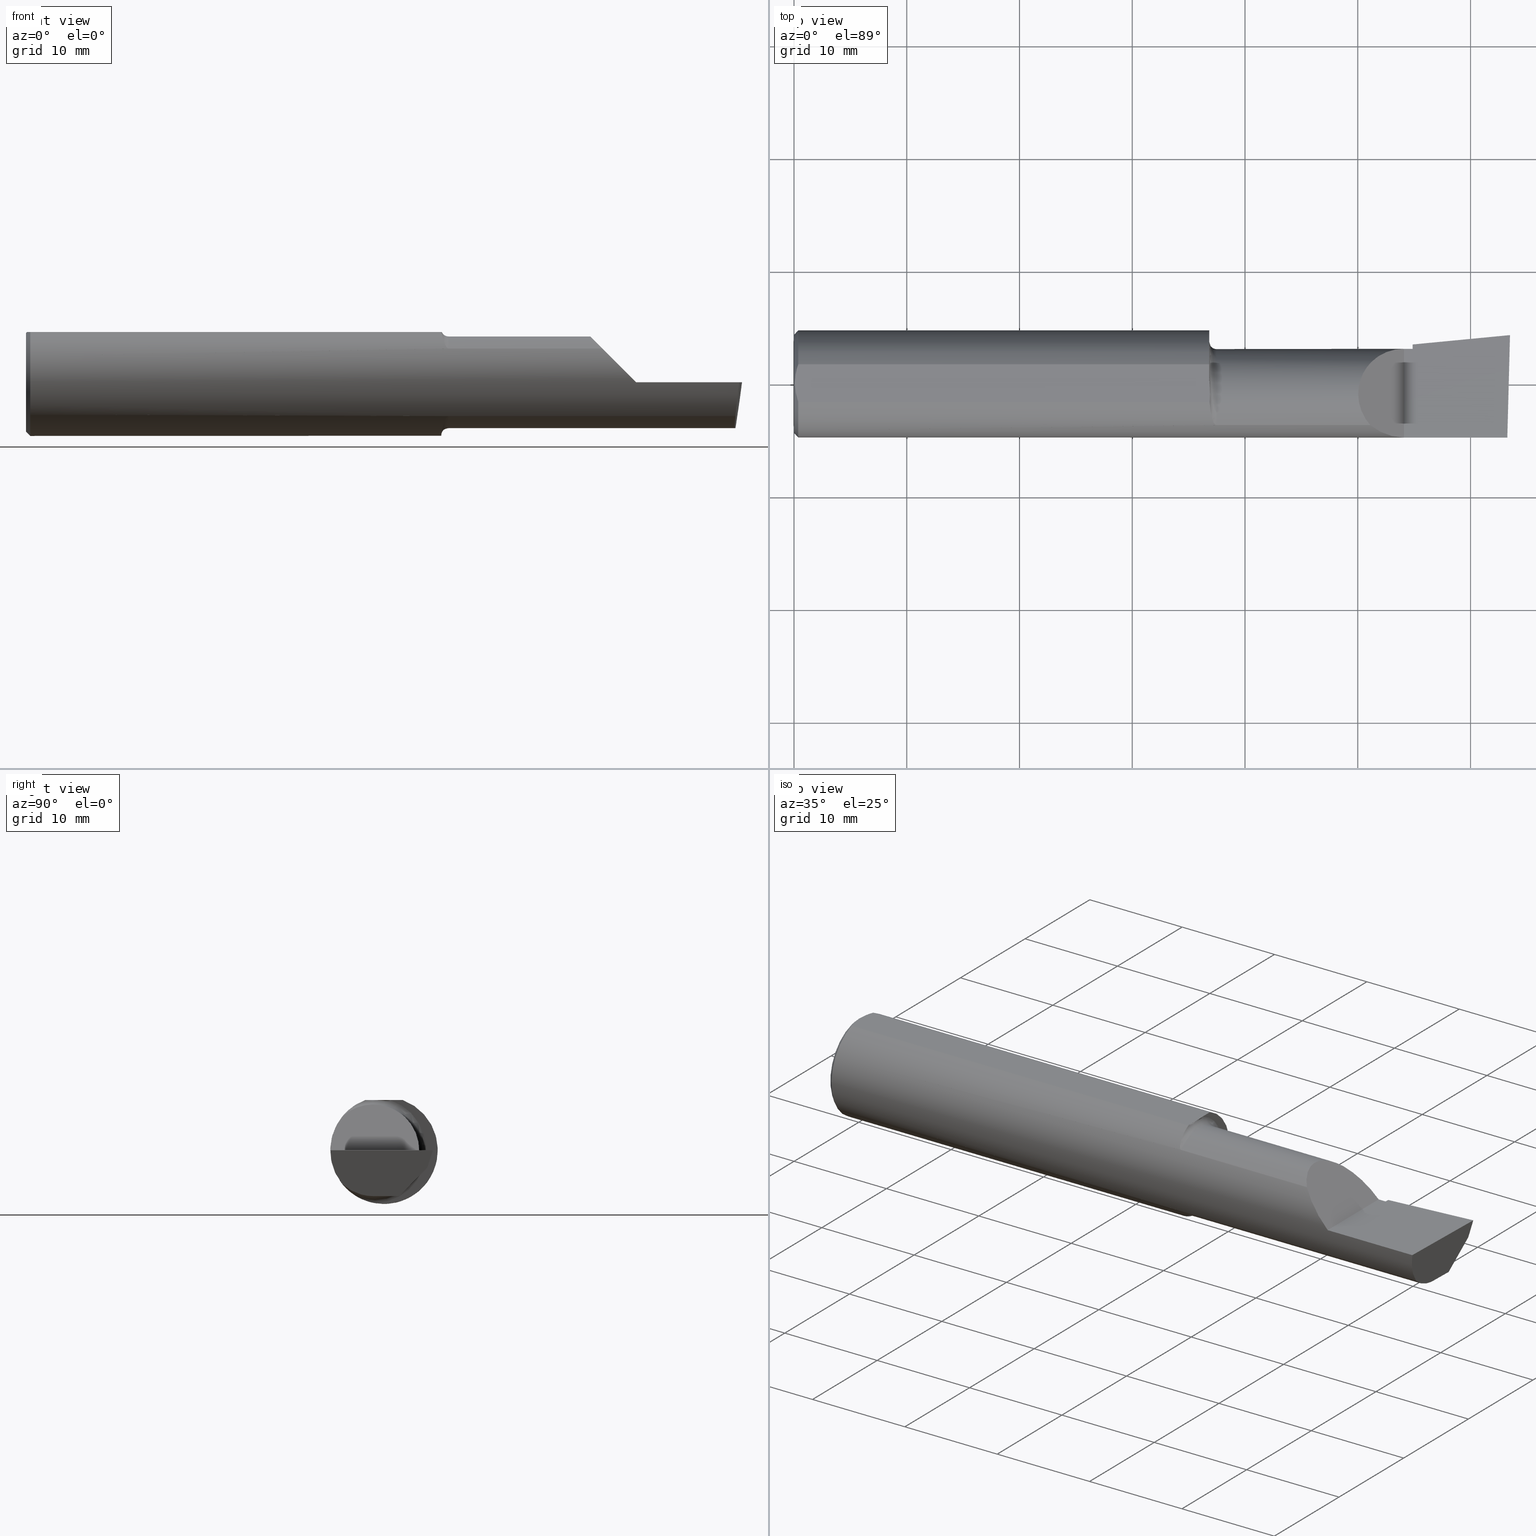
[diagram: canonical four-view strip — front | top / right | iso, engineering-drawing reading convention]
A machine part, canonical four-view strip (front | top / right | iso — engineering-drawing reading convention). The complete STEP part file that produces these views, byte-faithful:
ISO-10303-21;
HEADER;
FILE_DESCRIPTION (( 'STEP AP203' ),
    '1' );
FILE_NAME ('217519-B3601000.STEP',
    '2024-04-26T22:26:02',
    ( '' ),
    ( '' ),
    'SwSTEP 2.0',
    'SolidWorks 2022',
    '' );
FILE_SCHEMA (( 'CONFIG_CONTROL_DESIGN' ));
ENDSEC;

DATA;
#1 = EDGE_CURVE ( 'NONE', #325, #211, #90, .T. ) ;
#2 = CARTESIAN_POINT ( 'NONE',  ( 0.01499999999999997863, -0.06597272163553657975, 0.1753499999999999781 ) ) ;
#3 = ORIENTED_EDGE ( 'NONE', *, *, #240, .T. ) ;
#4 = CARTESIAN_POINT ( 'NONE',  ( 2.477223734188808812, -0.1454917112299466964, -0.1180346748349052066 ) ) ;
#5 = AXIS2_PLACEMENT_3D ( 'NONE', #89, #183, #293 ) ;
#6 = VERTEX_POINT ( 'NONE', #79 ) ;
#7 = CARTESIAN_POINT ( 'NONE',  ( 2.477223734188808812, -0.1454917112299466964, -0.1180346748349052066 ) ) ;
#8 = EDGE_CURVE ( 'NONE', #355, #362, #520, .T. ) ;
#9 = CARTESIAN_POINT ( 'NONE',  ( 1.458327409769773153, -0.1182546610979334223, 0.1455684145307631072 ) ) ;
#10 = ORIENTED_EDGE ( 'NONE', *, *, #180, .F. ) ;
#11 = CARTESIAN_POINT ( 'NONE',  ( 2.160000000000000142, -0.03740000000000000269, 0.000000000000000000 ) ) ;
#12 = CARTESIAN_POINT ( 'NONE',  ( 1.450000000000000178, -0.03739999999999999575, 0.000000000000000000 ) ) ;
#13 = ORIENTED_EDGE ( 'NONE', *, *, #488, .F. ) ;
#14 = ADVANCED_FACE ( 'NONE', ( #480 ), #426, .F. ) ;
#15 = DIRECTION ( 'NONE',  ( -1.000000000000000000, -0.000000000000000000, -0.000000000000000000 ) ) ;
#16 = CARTESIAN_POINT ( 'NONE',  ( 1.473888626799698676, -0.1454917112299466131, 0.1180346748349054009 ) ) ;
#17 = APPROVAL_PERSON_ORGANIZATION ( #359, #504, #33 ) ;
#18 = EDGE_LOOP ( 'NONE', ( #449, #558, #167, #72 ) ) ;
#19 = VECTOR ( 'NONE', #372, 39.37007874015748854 ) ;
#20 = CARTESIAN_POINT ( 'NONE',  ( 2.500000000000000000, -0.2500000000000000555, 6.829619984160658046E-17 ) ) ;
#21 = ORIENTED_EDGE ( 'NONE', *, *, #36, .T. ) ;
#22 = APPROVAL_STATUS ( 'not_yet_approved' ) ;
#23 = CARTESIAN_POINT ( 'NONE',  ( 1.451116380138691264, -0.06597272163553657975, 0.1753499999999999781 ) ) ;
#24 = ORIENTED_EDGE ( 'NONE', *, *, #335, .T. ) ;
#25 =( BOUNDED_CURVE ( )  B_SPLINE_CURVE ( 3, ( #447, #403, #454, #591 ),
 .UNSPECIFIED., .F., .F. ) 
 B_SPLINE_CURVE_WITH_KNOTS ( ( 4, 4 ),
 ( 4.712388980384689674, 5.393970886271889142 ),
 .UNSPECIFIED. ) 
 CURVE ( )  GEOMETRIC_REPRESENTATION_ITEM ( )  RATIONAL_B_SPLINE_CURVE ( ( 1.000000000000000000, 0.9616603987079548332, 0.9616603987079548332, 1.000000000000000000 ) ) 
 REPRESENTATION_ITEM ( '' )  );
#26 = LINE ( 'NONE', #522, #102 ) ;
#27 = PRODUCT ( '217519-B3601000', '217519-B3601000', '', ( #124 ) ) ;
#28 = ORIENTED_EDGE ( 'NONE', *, *, #385, .F. ) ;
#29 = PERSON_AND_ORGANIZATION ( #106, #332 ) ;
#30 = AXIS2_PLACEMENT_3D ( 'NONE', #441, #489, #493 ) ;
#31 = DIRECTION ( 'NONE',  ( -0.06894566448119622548, 0.7160281025913036723, -0.6946583704589932573 ) ) ;
#32 = PLANE ( 'NONE',  #314 ) ;
#33 = APPROVAL_ROLE ( '' ) ;
#34 = LINE ( 'NONE', #511, #324 ) ;
#35 = VERTEX_POINT ( 'NONE', #41 ) ;
#36 = EDGE_CURVE ( 'NONE', #362, #386, #433, .T. ) ;
#37 = FACE_OUTER_BOUND ( 'NONE', #445, .T. ) ;
#38 = CARTESIAN_POINT ( 'NONE',  ( 2.500000000000000000, 0.2373500000000000332, 0.1753499999999999504 ) ) ;
#39 = CARTESIAN_POINT ( 'NONE',  ( 1.470088327122037963, -0.1434986192849193043, -0.1204547541528185328 ) ) ;
#40 = VECTOR ( 'NONE', #476, 39.37007874015748143 ) ;
#41 = CARTESIAN_POINT ( 'NONE',  ( 2.160000000000000142, 0.1028057716897400747, -0.07719031082256667953 ) ) ;
#42 = CARTESIAN_POINT ( 'NONE',  ( 0.003000000000000218638, 2.334609556160449697E-17, 0.1753499999999999781 ) ) ;
#43 = ADVANCED_FACE ( 'NONE', ( #531 ), #32, .F. ) ;
#44 = EDGE_CURVE ( 'NONE', #53, #475, #159, .T. ) ;
#45 = ORIENTED_EDGE ( 'NONE', *, *, #562, .T. ) ;
#46 = LINE ( 'NONE', #237, #81 ) ;
#47 = PLANE ( 'NONE',  #343 ) ;
#48 = ORIENTED_EDGE ( 'NONE', *, *, #628, .T. ) ;
#49 = APPROVAL_STATUS ( 'not_yet_approved' ) ;
#50 = PLANE ( 'NONE',  #5 ) ;
#51 = CARTESIAN_POINT ( 'NONE',  ( 2.474893613600468445, -0.03739999999999999575, -0.1600499999999999701 ) ) ;
#52 = APPROVAL ( #22, 'UNSPECIFIED' ) ;
#53 = VERTEX_POINT ( 'NONE', #523 ) ;
#54 = ADVANCED_FACE ( 'NONE', ( #178 ), #571, .T. ) ;
#55 = EDGE_LOOP ( 'NONE', ( #236, #418 ) ) ;
#56 = CARTESIAN_POINT ( 'NONE',  ( 0.008227791779583789808, -0.04447712204611815878, 0.1753499999999999781 ) ) ;
#57 = DIRECTION ( 'NONE',  ( -4.755568962650852027E-18, -0.6963153109074922131, -0.7177360153954949196 ) ) ;
#58 = VECTOR ( 'NONE', #291, 39.37007874015748143 ) ;
#59 = CARTESIAN_POINT ( 'NONE',  ( 0.000000000000000000, -0.06597272163553657975, 0.1753499999999999781 ) ) ;
#60 = CARTESIAN_POINT ( 'NONE',  ( 0.01499999999999999424, 0.000000000000000000, 0.000000000000000000 ) ) ;
#61 = EDGE_CURVE ( 'NONE', #503, #475, #545, .T. ) ;
#62 = VERTEX_POINT ( 'NONE', #435 ) ;
#63 = CARTESIAN_POINT ( 'NONE',  ( 2.480648201915109929, -0.1728409665178087806, -0.08432347972837171690 ) ) ;
#64 = DIRECTION ( 'NONE',  ( -1.000000000000000000, 6.829619984160658046E-18, -0.000000000000000000 ) ) ;
#65 = VERTEX_POINT ( 'NONE', #550 ) ;
#66 = APPROVAL_STATUS ( 'not_yet_approved' ) ;
#67 = CARTESIAN_POINT ( 'NONE',  ( 0.01499999999999999424, 0.000000000000000000, -0.1873499999999999888 ) ) ;
#68 = ORIENTED_EDGE ( 'NONE', *, *, #554, .T. ) ;
#69 = VECTOR ( 'NONE', #482, 39.37007874015748854 ) ;
#70 = DIRECTION ( 'NONE',  ( 1.000000000000000000, 0.000000000000000000, 0.000000000000000000 ) ) ;
#71 = DIRECTION ( 'NONE',  ( -0.9953961983671800740, -0.09584575252021031166, 0.000000000000000000 ) ) ;
#72 = ORIENTED_EDGE ( 'NONE', *, *, #492, .T. ) ;
#73 = APPROVAL_DATE_TIME ( #76, #52 ) ;
#74 = LINE ( 'NONE', #165, #274 ) ;
#75 = VERTEX_POINT ( 'NONE', #141 ) ;
#76 = DATE_AND_TIME ( #467, #241 ) ;
#77 = FACE_OUTER_BOUND ( 'NONE', #328, .T. ) ;
#78 = CC_DESIGN_SECURITY_CLASSIFICATION ( #187, ( #577 ) ) ;
#79 = CARTESIAN_POINT ( 'NONE',  ( 2.129999999999999893, 0.1226499999999998147, 1.065442715258197396E-16 ) ) ;
#80 = AXIS2_PLACEMENT_3D ( 'NONE', #176, #373, #130 ) ;
#81 = VECTOR ( 'NONE', #436, 39.37007874015748143 ) ;
#82 = CARTESIAN_POINT ( 'NONE',  ( 1.450000000000000178, 0.02172596722253233859, 0.1753499999999999781 ) ) ;
#83 = EDGE_CURVE ( 'NONE', #214, #279, #140, .T. ) ;
#84 = CARTESIAN_POINT ( 'NONE',  ( 2.500188977433833504, 0.1711105994646693607, 0.001440373173035005379 ) ) ;
#85 = APPROVAL_DATE_TIME ( #529, #87 ) ;
#86 = CARTESIAN_POINT ( 'NONE',  ( 0.000000000000000000, 0.000000000000000000, -0.1723499999999996424 ) ) ;
#87 = APPROVAL ( #49, 'UNSPECIFIED' ) ;
#88 = VERTEX_POINT ( 'NONE', #485 ) ;
#89 = CARTESIAN_POINT ( 'NONE',  ( 2.509953961983671267, 0.1716084575252020683, -6.829619984160658046E-17 ) ) ;
#90 = LINE ( 'NONE', #370, #378 ) ;
#91 = LOCAL_TIME ( 15, 26, 2.000000000000000000, #271 ) ;
#92 = EDGE_CURVE ( 'NONE', #156, #386, #448, .T. ) ;
#93 = CARTESIAN_POINT ( 'NONE',  ( 1.462916881138097036, -0.1325294370633277874, -0.1325423110575149888 ) ) ;
#94 = ORIENTED_EDGE ( 'NONE', *, *, #44, .T. ) ;
#95 = CARTESIAN_POINT ( 'NONE',  ( 1.449999999999999734, -0.04186526254461760133, -0.1829978128711760021 ) ) ;
#96 = DIRECTION ( 'NONE',  ( 1.000000000000000000, 0.000000000000000000, 0.000000000000000000 ) ) ;
#97 = DIRECTION ( 'NONE',  ( -1.000000000000000000, -0.000000000000000000, -0.000000000000000000 ) ) ;
#98 = DIMENSIONAL_EXPONENTS ( 1.000000000000000000, 0.000000000000000000, 0.000000000000000000, 0.000000000000000000, 0.000000000000000000, 0.000000000000000000, 0.000000000000000000 ) ;
#99 = ORIENTED_EDGE ( 'NONE', *, *, #376, .F. ) ;
#100 = VECTOR ( 'NONE', #161, 39.37007874015748143 ) ;
#101 = CARTESIAN_POINT ( 'NONE',  ( 0.003000000000000172667, -0.01126410975715121283, 0.1753500000000000059 ) ) ;
#102 = VECTOR ( 'NONE', #365, 39.37007874015748143 ) ;
#103 = CARTESIAN_POINT ( 'NONE',  ( 2.473833329693935656, -0.07789060880782654184, -0.1600499999999999701 ) ) ;
#104 = CARTESIAN_POINT ( 'NONE',  ( 2.500000000000000000, -0.03739999999999999575, -0.1600499999999999701 ) ) ;
#105 = CARTESIAN_POINT ( 'NONE',  ( 1.474999999999999867, -0.1454917112299468351, 0.1180346748349049985 ) ) ;
#106 = PERSON ( 'UNSPECIFIED', 'UNSPECIFIED', 'UNSPECIFIED', ('UNSPECIFIED'), ('UNSPECIFIED'), ('UNSPECIFIED') ) ;
#107 = EDGE_CURVE ( 'NONE', #536, #325, #371, .T. ) ;
#108 = CARTESIAN_POINT ( 'NONE',  ( 1.453931069367344842, -0.09745462642916678797, 0.1609342754328617620 ) ) ;
#109 = CIRCLE ( 'NONE', #548, 0.1600499999999999423 ) ;
#110 = ORIENTED_EDGE ( 'NONE', *, *, #107, .T. ) ;
#111 = CARTESIAN_POINT ( 'NONE',  ( 2.160000000000000142, -0.03740000000000000269, 0.000000000000000000 ) ) ;
#112 = DIRECTION ( 'NONE',  ( 6.829619984160658046E-18, 1.000000000000000000, 0.000000000000000000 ) ) ;
#113 = ORIENTED_EDGE ( 'NONE', *, *, #36, .F. ) ;
#114 = PERSON_AND_ORGANIZATION ( #106, #332 ) ;
#115 = FACE_OUTER_BOUND ( 'NONE', #203, .T. ) ;
#116 = EDGE_LOOP ( 'NONE', ( #119, #429, #367, #94, #319 ) ) ;
#117 = COORDINATED_UNIVERSAL_TIME_OFFSET ( 8, 0, .BEHIND. ) ;
#118 = CARTESIAN_POINT ( 'NONE',  ( 2.511712141217646632, 0.1533490680423130470, -0.05999999999999999084 ) ) ;
#119 = ORIENTED_EDGE ( 'NONE', *, *, #590, .F. ) ;
#120 = PERSON_AND_ORGANIZATION ( #106, #332 ) ;
#121 = LINE ( 'NONE', #563, #198 ) ;
#122 = CC_DESIGN_PERSON_AND_ORGANIZATION_ASSIGNMENT ( #320, #473, ( #27 ) ) ;
#123 = ORIENTED_EDGE ( 'NONE', *, *, #269, .F. ) ;
#124 = MECHANICAL_CONTEXT ( 'NONE', #374, 'mechanical' ) ;
#125 = CARTESIAN_POINT ( 'NONE',  ( 2.477259974483429161, 0.05296767626088547121, -0.1600499999999999701 ) ) ;
#126 = EDGE_LOOP ( 'NONE', ( #68, #342 ) ) ;
#127 = COORDINATED_UNIVERSAL_TIME_OFFSET ( 8, 0, .BEHIND. ) ;
#128 = DIRECTION ( 'NONE',  ( -1.000000000000000000, 6.829619984160658046E-18, -0.000000000000000000 ) ) ;
#129 = VECTOR ( 'NONE', #266, 39.37007874015748143 ) ;
#130 = DIRECTION ( 'NONE',  ( 0.000000000000000000, 0.000000000000000000, 1.000000000000000000 ) ) ;
#131 = DIRECTION ( 'NONE',  ( 0.000000000000000000, 0.000000000000000000, -1.000000000000000000 ) ) ;
#132 = CARTESIAN_POINT ( 'NONE',  ( 0.000000000000000000, -0.03739999999999998881, 0.000000000000000000 ) ) ;
#133 = CALENDAR_DATE ( 2024, 26, 4 ) ;
#134 = CARTESIAN_POINT ( 'NONE',  ( 2.160000000000000142, -0.03739999999999999575, -0.1600499999999999701 ) ) ;
#135 = ORIENTED_EDGE ( 'NONE', *, *, #517, .T. ) ;
#136 = CARTESIAN_POINT ( 'NONE',  ( 0.003000000000000218638, 2.334609556160449697E-17, 0.1753499999999999781 ) ) ;
#137 = VERTEX_POINT ( 'NONE', #533 ) ;
#138 = LOCAL_TIME ( 15, 26, 2.000000000000000000, #117 ) ;
#139 = CARTESIAN_POINT ( 'NONE',  ( 1.457485333659844340, -0.1155414972264648399, -0.1479248906558525423 ) ) ;
#140 = CIRCLE ( 'NONE', #559, 0.1850499999999998813 ) ;
#141 = CARTESIAN_POINT ( 'NONE',  ( 2.129999999999999893, -0.1873499999999999888, 1.065442715258197396E-16 ) ) ;
#142 = MANIFOLD_SOLID_BREP ( 'Extrude7', #570 ) ;
#143 = CARTESIAN_POINT ( 'NONE',  ( 0.01125230581755086272, 0.05532998191409922023, 0.1753500000000000059 ) ) ;
#144 = B_SPLINE_CURVE_WITH_KNOTS ( 'NONE', 3,
 ( #82, #419, #610, #313, #216, #268, #172, #605, #278, #23 ),
 .UNSPECIFIED., .F., .F.,
 ( 4, 2, 2, 2, 4 ),
 ( 0.01227444304810502811, 0.01283060897601855099, 0.01338677490393207388, 0.01394294083184559677, 0.01449910675975911965 ),
 .UNSPECIFIED. ) ;
#145 = DIRECTION ( 'NONE',  ( 0.000000000000000000, 1.000000000000000000, 0.000000000000000000 ) ) ;
#146 = ORIENTED_EDGE ( 'NONE', *, *, #399, .F. ) ;
#147 = DIRECTION ( 'NONE',  ( -1.000000000000000000, 6.829619984160658046E-18, -0.000000000000000000 ) ) ;
#148 = ADVANCED_FACE ( 'NONE', ( #585 ), #420, .T. ) ;
#149 = ORIENTED_EDGE ( 'NONE', *, *, #583, .F. ) ;
#150 = CARTESIAN_POINT ( 'NONE',  ( 2.500000000000000000, -0.03739999999999999575, -0.1600499999999999701 ) ) ;
#151 = AXIS2_PLACEMENT_3D ( 'NONE', #495, #191, #145 ) ;
#152 = CARTESIAN_POINT ( 'NONE',  ( 0.000000000000000000, 0.000000000000000000, 0.000000000000000000 ) ) ;
#153 = ADVANCED_FACE ( 'NONE', ( #502 ), #47, .T. ) ;
#154 = LINE ( 'NONE', #104, #100 ) ;
#155 = CARTESIAN_POINT ( 'NONE',  ( 1.450000000000000178, 0.02172596722253233859, 0.1753499999999999781 ) ) ;
#156 = VERTEX_POINT ( 'NONE', #635 ) ;
#157 = LINE ( 'NONE', #351, #129 ) ;
#158 = LINE ( 'NONE', #205, #510 ) ;
#159 = CIRCLE ( 'NONE', #80, 0.1873499999999999888 ) ;
#160 = ORIENTED_EDGE ( 'NONE', *, *, #540, .F. ) ;
#161 = DIRECTION ( 'NONE',  ( -1.000000000000000000, 5.691349986800549142E-18, -0.000000000000000000 ) ) ;
#162 = LINE ( 'NONE', #357, #261 ) ;
#163 = ORIENTED_EDGE ( 'NONE', *, *, #583, .T. ) ;
#164 = PERSON_AND_ORGANIZATION ( #106, #332 ) ;
#165 = CARTESIAN_POINT ( 'NONE',  ( 1.450000000000000178, 0.2373500000000000332, 0.1753499999999999504 ) ) ;
#166 = EDGE_CURVE ( 'NONE', #279, #137, #446, .T. ) ;
#167 = ORIENTED_EDGE ( 'NONE', *, *, #599, .T. ) ;
#168 = CALENDAR_DATE ( 2024, 26, 4 ) ;
#169 = DIRECTION ( 'NONE',  ( -6.829619984160658046E-18, -1.000000000000000000, 0.000000000000000000 ) ) ;
#170 = LOCAL_TIME ( 15, 26, 2.000000000000000000, #383 ) ;
#171 = EDGE_LOOP ( 'NONE', ( #345, #561, #248, #574, #24, #196, #311, #466, #483, #412 ) ) ;
#172 = CARTESIAN_POINT ( 'NONE',  ( 1.452020598872754586, -0.03676412395316108056, 0.1753500000000000614 ) ) ;
#173 = ORIENTED_EDGE ( 'NONE', *, *, #238, .F. ) ;
#174 =( LENGTH_UNIT ( ) NAMED_UNIT ( * ) SI_UNIT ( $, .METRE. ) );
#175 = CARTESIAN_POINT ( 'NONE',  ( 2.488992440003207296, -0.2497117568972554158, 6.943408617627041469E-17 ) ) ;
#176 = CARTESIAN_POINT ( 'NONE',  ( 0.01499999999999999424, 0.000000000000000000, 0.000000000000000000 ) ) ;
#177 = CARTESIAN_POINT ( 'NONE',  ( 1.474999999999999867, -0.1454917112299468351, 0.1180346748349049985 ) ) ;
#178 = FACE_OUTER_BOUND ( 'NONE', #171, .T. ) ;
#179 = CARTESIAN_POINT ( 'NONE',  ( 2.129999999999999893, -0.2500000000000000555, 1.065442715258197396E-16 ) ) ;
#180 = EDGE_CURVE ( 'NONE', #75, #6, #254, .T. ) ;
#181 = ORIENTED_EDGE ( 'NONE', *, *, #535, .T. ) ;
#182 = SHAPE_DEFINITION_REPRESENTATION ( #514, #431 ) ;
#183 = DIRECTION ( 'NONE',  ( -0.09165774897393340337, 0.9519021185660613282, -0.2923717047227306631 ) ) ;
#184 = ORIENTED_EDGE ( 'NONE', *, *, #308, .F. ) ;
#185 = DIRECTION ( 'NONE',  ( -0.7071067811865511255, 0.000000000000000000, 0.7071067811865437980 ) ) ;
#186 = CARTESIAN_POINT ( 'NONE',  ( 1.464940665466612613, -0.1367234982206457783, 0.1281512008975648209 ) ) ;
#187 = SECURITY_CLASSIFICATION ( '', '', #457 ) ;
#188 = VECTOR ( 'NONE', #451, 39.37007874015748143 ) ;
#189 = CARTESIAN_POINT ( 'NONE',  ( 0.01499999999999999424, 0.06597272163553663527, 0.1753499999999999781 ) ) ;
#190 = CIRCLE ( 'NONE', #391, 0.1600499999999999701 ) ;
#191 = DIRECTION ( 'NONE',  ( 1.000000000000000000, -6.829619984160658046E-18, 0.000000000000000000 ) ) ;
#192 = ORIENTED_EDGE ( 'NONE', *, *, #83, .T. ) ;
#193 = ADVANCED_FACE ( 'NONE', ( #115 ), #609, .F. ) ;
#194 = CARTESIAN_POINT ( 'NONE',  ( 1.467060058352116725, -0.1401415676386934539, -0.1243666343873858632 ) ) ;
#195 = PLANE ( 'NONE',  #30 ) ;
#196 = ORIENTED_EDGE ( 'NONE', *, *, #630, .T. ) ;
#197 = DIRECTION ( 'NONE',  ( -4.755568962650852027E-18, -0.6963153109074922131, -0.7177360153954949196 ) ) ;
#198 = VECTOR ( 'NONE', #71, 39.37007874015748854 ) ;
#199 = EDGE_CURVE ( 'NONE', #461, #292, #158, .T. ) ;
#200 = DIRECTION ( 'NONE',  ( 0.000000000000000000, 0.000000000000000000, -1.000000000000000000 ) ) ;
#201 = CARTESIAN_POINT ( 'NONE',  ( 2.490625440078237940, -0.1873499999999999888, 6.926778495256700803E-17 ) ) ;
#202 = DIRECTION ( 'NONE',  ( -1.000000000000000000, 6.829619984160658046E-18, -0.000000000000000000 ) ) ;
#203 = EDGE_LOOP ( 'NONE', ( #258, #526, #397, #110, #439 ) ) ;
#204 = CARTESIAN_POINT ( 'NONE',  ( 0.000000000000000000, 2.202527268266512578E-17, 0.1723499999999996424 ) ) ;
#205 = CARTESIAN_POINT ( 'NONE',  ( 2.160000000000000142, 0.1010446066476776983, -0.07900565447499380278 ) ) ;
#206 = AXIS2_PLACEMENT_3D ( 'NONE', #543, #64, #299 ) ;
#207 = ORIENTED_EDGE ( 'NONE', *, *, #238, .T. ) ;
#208 = CARTESIAN_POINT ( 'NONE',  ( 0.000000000000000000, 0.000000000000000000, 0.000000000000000000 ) ) ;
#209 = ADVANCED_FACE ( 'NONE', ( #600 ), #250, .T. ) ;
#210 = CARTESIAN_POINT ( 'NONE',  ( 2.490625440078237940, -0.1873499999999999888, 6.926778495256700803E-17 ) ) ;
#211 = VERTEX_POINT ( 'NONE', #594 ) ;
#212 = APPROVAL_DATE_TIME ( #363, #504 ) ;
#213 = CARTESIAN_POINT ( 'NONE',  ( 2.160000000000000142, 0.02241901528670510110, -0.1600499999999999701 ) ) ;
#214 = VERTEX_POINT ( 'NONE', #155 ) ;
#215 =( NAMED_UNIT ( * ) PLANE_ANGLE_UNIT ( ) SI_UNIT ( $, .RADIAN. ) );
#216 = CARTESIAN_POINT ( 'NONE',  ( 1.451446793517544576, -0.01487494471390338711, 0.1753500000000000059 ) ) ;
#217 = CONICAL_SURFACE ( 'NONE', #242, 0.1873499999999999888, 0.7853981633974602694 ) ;
#218 = ORIENTED_EDGE ( 'NONE', *, *, #582, .T. ) ;
#219 = VECTOR ( 'NONE', #528, 39.37007874015748854 ) ;
#220 = LENGTH_MEASURE_WITH_UNIT ( LENGTH_MEASURE( 0.02539999999999999897 ), #174 );
#221 = DIRECTION ( 'NONE',  ( 0.7071067811865390240, 8.659560562355036396E-17, 0.7071067811865560104 ) ) ;
#222 = CARTESIAN_POINT ( 'NONE',  ( 0.000000000000000000, 0.000000000000000000, 0.000000000000000000 ) ) ;
#223 = CALENDAR_DATE ( 2024, 26, 4 ) ;
#224 = DIRECTION ( 'NONE',  ( -1.000000000000000000, 0.000000000000000000, 1.033731667140896077E-16 ) ) ;
#225 = ORIENTED_EDGE ( 'NONE', *, *, #406, .F. ) ;
#226 = EDGE_CURVE ( 'NONE', #156, #415, #162, .T. ) ;
#227 = CARTESIAN_POINT ( 'NONE',  ( 2.160000000000000142, 0.1194830407249524440, -0.05999999999999999084 ) ) ;
#228 = CC_DESIGN_DATE_AND_TIME_ASSIGNMENT ( #425, #617, ( #187 ) ) ;
#229 = CIRCLE ( 'NONE', #479, 0.1600499999999999146 ) ;
#230 = DIRECTION ( 'NONE',  ( 0.000000000000000000, -1.438723400918613551E-16, -1.000000000000000000 ) ) ;
#231 = DESIGN_CONTEXT ( 'detailed design', #615, 'design' ) ;
#232 = AXIS2_PLACEMENT_3D ( 'NONE', #518, #422, #613 ) ;
#233 = CARTESIAN_POINT ( 'NONE',  ( 1.465943198097122258, -0.1383011673991928203, -0.1264147259943153856 ) ) ;
#234 = VERTEX_POINT ( 'NONE', #210 ) ;
#235 = LINE ( 'NONE', #478, #286 ) ;
#236 = ORIENTED_EDGE ( 'NONE', *, *, #376, .T. ) ;
#237 = CARTESIAN_POINT ( 'NONE',  ( 2.160000000000000142, -0.03739999999999999575, -0.1600499999999999701 ) ) ;
#238 = EDGE_CURVE ( 'NONE', #234, #386, #264, .T. ) ;
#239 = CARTESIAN_POINT ( 'NONE',  ( 1.450000000000000178, 0.1476499999999998924, 0.000000000000000000 ) ) ;
#240 = EDGE_CURVE ( 'NONE', #53, #137, #26, .T. ) ;
#241 = LOCAL_TIME ( 15, 26, 2.000000000000000000, #127 ) ;
#242 = AXIS2_PLACEMENT_3D ( 'NONE', #566, #323, #131 ) ;
#243 = FACE_OUTER_BOUND ( 'NONE', #456, .T. ) ;
#244 = ORIENTED_EDGE ( 'NONE', *, *, #387, .T. ) ;
#245 = CARTESIAN_POINT ( 'NONE',  ( 0.000000000000000000, 0.000000000000000000, 0.000000000000000000 ) ) ;
#246 = EDGE_CURVE ( 'NONE', #601, #62, #560, .T. ) ;
#247 = CARTESIAN_POINT ( 'NONE',  ( 0.01128414053810044941, -0.05542038647445821781, 0.1753499999999999781 ) ) ;
#248 = ORIENTED_EDGE ( 'NONE', *, *, #622, .F. ) ;
#249 = CARTESIAN_POINT ( 'NONE',  ( 2.474646882977779239, -0.1156304438478838320, -0.1453804992321580947 ) ) ;
#250 = PLANE ( 'NONE',  #496 ) ;
#251 = VECTOR ( 'NONE', #333, 39.37007874015748143 ) ;
#252 = ORIENTED_EDGE ( 'NONE', *, *, #92, .F. ) ;
#253 = DIRECTION ( 'NONE',  ( -1.000000000000000000, -0.000000000000000000, -0.000000000000000000 ) ) ;
#254 = LINE ( 'NONE', #411, #458 ) ;
#255 = ORIENTED_EDGE ( 'NONE', *, *, #44, .F. ) ;
#256 = DIRECTION ( 'NONE',  ( -1.000000000000000000, -0.000000000000000000, -0.000000000000000000 ) ) ;
#257 = DIRECTION ( 'NONE',  ( -0.000000000000000000, 1.000000000000000000, -0.000000000000000000 ) ) ;
#258 = ORIENTED_EDGE ( 'NONE', *, *, #488, .T. ) ;
#259 =( BOUNDED_CURVE ( )  B_SPLINE_CURVE ( 3, ( #260, #460, #417, #513 ),
 .UNSPECIFIED., .F., .F. ) 
 B_SPLINE_CURVE_WITH_KNOTS ( ( 4, 4 ),
 ( 5.541729662751388119, 7.853981633974482790 ),
 .UNSPECIFIED. ) 
 CURVE ( )  GEOMETRIC_REPRESENTATION_ITEM ( )  RATIONAL_B_SPLINE_CURVE ( ( 1.000000000000000000, 0.6019254882129727591, 0.6019254882129727591, 1.000000000000000000 ) ) 
 REPRESENTATION_ITEM ( '' )  );
#260 = CARTESIAN_POINT ( 'NONE',  ( 2.011965325165093077, -0.1454917112299463633, 0.1180346748349055119 ) ) ;
#261 = VECTOR ( 'NONE', #348, 39.37007874015748143 ) ;
#262 = EDGE_LOOP ( 'NONE', ( #146, #207, #252, #184, #453, #10 ) ) ;
#263 =( BOUNDED_CURVE ( )  B_SPLINE_CURVE ( 3, ( #4, #249, #103, #51 ),
 .UNSPECIFIED., .F., .F. ) 
 B_SPLINE_CURVE_WITH_KNOTS ( ( 4, 4 ),
 ( 5.751779107031784299, 6.493234751459985965 ),
 .UNSPECIFIED. ) 
 CURVE ( )  GEOMETRIC_REPRESENTATION_ITEM ( )  RATIONAL_B_SPLINE_CURVE ( ( 1.000000000000000000, 0.9547092712975351336, 0.9547092712975351336, 1.000000000000000000 ) ) 
 REPRESENTATION_ITEM ( '' )  );
#264 = LINE ( 'NONE', #175, #19 ) ;
#265 = ORIENTED_EDGE ( 'NONE', *, *, #246, .F. ) ;
#266 = DIRECTION ( 'NONE',  ( 1.000000000000000000, -6.829619984160658046E-18, 0.000000000000000000 ) ) ;
#267 = ADVANCED_FACE ( 'NONE', ( #375 ), #217, .T. ) ;
#268 = CARTESIAN_POINT ( 'NONE',  ( 1.451936435452952923, -0.02946557294852162820, 0.1753500000000000614 ) ) ;
#269 = EDGE_CURVE ( 'NONE', #214, #536, #144, .T. ) ;
#270 = EDGE_LOOP ( 'NONE', ( #113, #45, #490, #506 ) ) ;
#271 = COORDINATED_UNIVERSAL_TIME_OFFSET ( 8, 0, .BEHIND. ) ;
#272 = DIRECTION ( 'NONE',  ( 0.000000000000000000, 0.6963153109074923242, 0.7177360153954949196 ) ) ;
#273 = AXIS2_PLACEMENT_3D ( 'NONE', #245, #256, #347 ) ;
#274 = VECTOR ( 'NONE', #360, 39.37007874015748143 ) ;
#275 = ORIENTED_EDGE ( 'NONE', *, *, #61, .T. ) ;
#276 = VECTOR ( 'NONE', #197, 39.37007874015748854 ) ;
#277 = PERSON_AND_ORGANIZATION_ROLE ( 'classification_officer' ) ;
#278 = CARTESIAN_POINT ( 'NONE',  ( 1.451479449616800199, -0.05867400124853733995, 0.1753500000000000059 ) ) ;
#279 = VERTEX_POINT ( 'NONE', #474 ) ;
#280 = CC_DESIGN_DATE_AND_TIME_ASSIGNMENT ( #368, #602, ( #614 ) ) ;
#281 = FACE_OUTER_BOUND ( 'NONE', #616, .T. ) ;
#282 = EDGE_LOOP ( 'NONE', ( #568, #611, #192 ) ) ;
#283 = ADVANCED_FACE ( 'NONE', ( #326 ), #369, .F. ) ;
#284 = CARTESIAN_POINT ( 'NONE',  ( 2.160000000000000142, -0.03740000000000000269, 0.000000000000000000 ) ) ;
#285 = ORIENTED_EDGE ( 'NONE', *, *, #562, .F. ) ;
#286 = VECTOR ( 'NONE', #434, 39.37007874015748854 ) ;
#287 = CARTESIAN_POINT ( 'NONE',  ( 0.004115035183746292881, 0.02255629470626744487, 0.1753499999999999781 ) ) ;
#288 = DIRECTION ( 'NONE',  ( 0.000000000000000000, 0.000000000000000000, -1.000000000000000000 ) ) ;
#289 = CARTESIAN_POINT ( 'NONE',  ( 1.450000000000000178, -0.03015080213903793827, -0.1849079544810676434 ) ) ;
#290 = ADVANCED_FACE ( 'NONE', ( #77 ), #468, .T. ) ;
#291 = DIRECTION ( 'NONE',  ( 0.7071067811865390240, 0.000000000000000000, -0.7071067811865560104 ) ) ;
#292 = VERTEX_POINT ( 'NONE', #213 ) ;
#293 = DIRECTION ( 'NONE',  ( 0.000000000000000000, 0.2936076258024064023, 0.9559260233253795702 ) ) ;
#294 =( GEOMETRIC_REPRESENTATION_CONTEXT ( 3 ) GLOBAL_UNCERTAINTY_ASSIGNED_CONTEXT ( ( #624 ) ) GLOBAL_UNIT_ASSIGNED_CONTEXT ( ( #416, #215, #556 ) ) REPRESENTATION_CONTEXT ( 'NONE', 'WORKASPACE' ) );
#295 = DIRECTION ( 'NONE',  ( 1.000000000000000000, 0.000000000000000000, 0.000000000000000000 ) ) ;
#296 = LINE ( 'NONE', #491, #634 ) ;
#297 = ORIENTED_EDGE ( 'NONE', *, *, #308, .T. ) ;
#298 = FACE_OUTER_BOUND ( 'NONE', #18, .T. ) ;
#299 = DIRECTION ( 'NONE',  ( -6.829619984160658046E-18, -1.000000000000000000, 0.000000000000000000 ) ) ;
#300 = CARTESIAN_POINT ( 'NONE',  ( 1.451116380138691264, -0.06597272163553657975, 0.1753499999999999781 ) ) ;
#301 = AXIS2_PLACEMENT_3D ( 'NONE', #132, #389, #310 ) ;
#302 = CARTESIAN_POINT ( 'NONE',  ( 0.3393181374772696324, -0.03739999999999998881, 2.916527262322783071E-16 ) ) ;
#303 = AXIS2_PLACEMENT_3D ( 'NONE', #284, #147, #427 ) ;
#304 = ORIENTED_EDGE ( 'NONE', *, *, #107, .F. ) ;
#305 = LINE ( 'NONE', #450, #276 ) ;
#306 = CARTESIAN_POINT ( 'NONE',  ( 1.470462485058698254, -0.1437494271365422627, 0.1201537477313809610 ) ) ;
#307 = B_SPLINE_CURVE_WITH_KNOTS ( 'NONE', 3,
 ( #136, #575, #287, #627, #143, #189 ),
 .UNSPECIFIED., .F., .F.,
 ( 4, 2, 4 ),
 ( 0.003480013901590607410, 0.004330767971208083697, 0.005181522040825559984 ),
 .UNSPECIFIED. ) ;
#308 = EDGE_CURVE ( 'NONE', #65, #156, #34, .T. ) ;
#309 = ORIENTED_EDGE ( 'NONE', *, *, #226, .T. ) ;
#310 = DIRECTION ( 'NONE',  ( -6.829619984160658816E-18, -1.000000000000000000, 0.000000000000000000 ) ) ;
#311 = ORIENTED_EDGE ( 'NONE', *, *, #525, .T. ) ;
#312 = CALENDAR_DATE ( 2024, 26, 4 ) ;
#313 = CARTESIAN_POINT ( 'NONE',  ( 1.451049074448709231, -0.007621984361107582255, 0.1753500000000000059 ) ) ;
#314 = AXIS2_PLACEMENT_3D ( 'NONE', #222, #619, #288 ) ;
#315 = ORIENTED_EDGE ( 'NONE', *, *, #361, .F. ) ;
#316 = EDGE_CURVE ( 'NONE', #355, #292, #121, .T. ) ;
#317 = PERSON_AND_ORGANIZATION_ROLE ( 'creator' ) ;
#318 = DIRECTION ( 'NONE',  ( -1.033731667140896077E-16, 0.000000000000000000, -1.000000000000000000 ) ) ;
#319 = ORIENTED_EDGE ( 'NONE', *, *, #61, .F. ) ;
#320 = PERSON_AND_ORGANIZATION ( #106, #332 ) ;
#321 = CARTESIAN_POINT ( 'NONE',  ( 2.492127980275578913, 0.1514633278254541304, -0.05999999999999998390 ) ) ;
#322 = DIRECTION ( 'NONE',  ( 1.000000000000000000, -6.829619984160658046E-18, 0.000000000000000000 ) ) ;
#323 = DIRECTION ( 'NONE',  ( 1.000000000000000000, 0.000000000000000000, 0.000000000000000000 ) ) ;
#324 = VECTOR ( 'NONE', #524, 39.37007874015748143 ) ;
#325 = VERTEX_POINT ( 'NONE', #177 ) ;
#326 = FACE_OUTER_BOUND ( 'NONE', #126, .T. ) ;
#327 = ADVANCED_FACE ( 'NONE', ( #414 ), #603, .F. ) ;
#328 = EDGE_LOOP ( 'NONE', ( #555, #564, #626, #160, #401, #285 ) ) ;
#329 = FACE_OUTER_BOUND ( 'NONE', #270, .T. ) ;
#330 = CARTESIAN_POINT ( 'NONE',  ( 2.492483720199198949, 0.1538199878950242405, -0.05760614975163728252 ) ) ;
#331 = CARTESIAN_POINT ( 'NONE',  ( 1.473475335450380896, -0.1454917112299464743, -0.1180346748349054287 ) ) ;
#332 = ORGANIZATION ( 'UNSPECIFIED', 'UNSPECIFIED', '' ) ;
#333 = DIRECTION ( 'NONE',  ( 0.1240019227989975908, 0.3022330132596680041, 0.9451342385281219505 ) ) ;
#334 = VECTOR ( 'NONE', #128, 39.37007874015748143 ) ;
#335 = EDGE_CURVE ( 'NONE', #211, #6, #259, .T. ) ;
#336 = CARTESIAN_POINT ( 'NONE',  ( 1.455627379275792777, -0.1060494212093229249, -0.1548887329701215676 ) ) ;
#337 = CARTESIAN_POINT ( 'NONE',  ( 1.463610562096348655, -0.1338335382286866548, 0.1311728947444868454 ) ) ;
#338 = CARTESIAN_POINT ( 'NONE',  ( 1.474999999999999867, -0.1454917112299464743, -0.1180346748349053593 ) ) ;
#339 = ORIENTED_EDGE ( 'NONE', *, *, #494, .T. ) ;
#340 = DIRECTION ( 'NONE',  ( 0.000000000000000000, 0.000000000000000000, 1.000000000000000000 ) ) ;
#341 = CC_DESIGN_PERSON_AND_ORGANIZATION_ASSIGNMENT ( #114, #277, ( #187 ) ) ;
#342 = ORIENTED_EDGE ( 'NONE', *, *, #540, .T. ) ;
#343 = AXIS2_PLACEMENT_3D ( 'NONE', #239, #437, #112 ) ;
#344 = DIRECTION ( 'NONE',  ( -1.000000000000000000, 6.829619984160658046E-18, -0.000000000000000000 ) ) ;
#345 = ORIENTED_EDGE ( 'NONE', *, *, #535, .F. ) ;
#346 = CYLINDRICAL_SURFACE ( 'NONE', #273, 0.1873499999999999888 ) ;
#347 = DIRECTION ( 'NONE',  ( 0.000000000000000000, 0.000000000000000000, 1.000000000000000000 ) ) ;
#348 = DIRECTION ( 'NONE',  ( -2.005228508682078977E-18, -0.2936076258024064023, -0.9559260233253795702 ) ) ;
#349 = ORIENTED_EDGE ( 'NONE', *, *, #492, .F. ) ;
#350 = CC_DESIGN_APPROVAL ( #87, ( #187 ) ) ;
#351 = CARTESIAN_POINT ( 'NONE',  ( 1.093080678464946554E-18, 0.1226499999999999257, 3.267291166268304703E-16 ) ) ;
#352 = EDGE_CURVE ( 'NONE', #137, #214, #74, .T. ) ;
#353 = DIRECTION ( 'NONE',  ( -1.000000000000000000, 6.829619984160658046E-18, 0.000000000000000000 ) ) ;
#354 = AXIS2_PLACEMENT_3D ( 'NONE', #150, #404, #295 ) ;
#355 = VERTEX_POINT ( 'NONE', #125 ) ;
#356 = PERSON_AND_ORGANIZATION ( #106, #332 ) ;
#357 = CARTESIAN_POINT ( 'NONE',  ( 2.160000000000000142, 0.1346188438362106166, -0.01072093908174519966 ) ) ;
#358 = ORIENTED_EDGE ( 'NONE', *, *, #8, .T. ) ;
#359 = PERSON_AND_ORGANIZATION ( #106, #332 ) ;
#360 = DIRECTION ( 'NONE',  ( -6.829619984160658046E-18, -1.000000000000000000, 1.438723400918613551E-16 ) ) ;
#361 = EDGE_CURVE ( 'NONE', #597, #394, #557, .T. ) ;
#362 = VERTEX_POINT ( 'NONE', #321 ) ;
#363 = DATE_AND_TIME ( #168, #138 ) ;
#364 = CC_DESIGN_APPROVAL ( #52, ( #577 ) ) ;
#365 = DIRECTION ( 'NONE',  ( 1.000000000000000000, 0.000000000000000000, 0.000000000000000000 ) ) ;
#366 = AXIS2_PLACEMENT_3D ( 'NONE', #384, #388, #438 ) ;
#367 = ORIENTED_EDGE ( 'NONE', *, *, #385, .T. ) ;
#368 = DATE_AND_TIME ( #312, #631 ) ;
#369 = PLANE ( 'NONE',  #579 ) ;
#370 = CARTESIAN_POINT ( 'NONE',  ( 1.817499999999999893, -0.1454917112299466964, 0.1180346748349052066 ) ) ;
#371 = B_SPLINE_CURVE_WITH_KNOTS ( 'NONE', 3,
 ( #581, #505, #108, #9, #393, #337, #186, #455, #499, #306, #629, #553, #16, #105 ),
 .UNSPECIFIED., .F., .F.,
 ( 4, 2, 2, 2, 2, 2, 4 ),
 ( 5.633523616098152958E-07, 0.001319819381107001062, 0.001979447395479695063, 0.002309261402666041522, 0.002474168406259215185, 0.002556621908055801799, 0.002639075409852388414 ),
 .UNSPECIFIED. ) ;
#372 = DIRECTION ( 'NONE',  ( 0.02617694830791466795, 0.9996573249755561497, -2.665804247648012316E-18 ) ) ;
#373 = DIRECTION ( 'NONE',  ( -1.000000000000000000, -0.000000000000000000, -0.000000000000000000 ) ) ;
#374 = APPLICATION_CONTEXT ( 'configuration controlled 3d designs of mechanical parts and assemblies' ) ;
#375 = FACE_OUTER_BOUND ( 'NONE', #116, .T. ) ;
#376 = EDGE_CURVE ( 'NONE', #503, #597, #621, .T. ) ;
#377 = APPROVAL_PERSON_ORGANIZATION ( #164, #87, #481 ) ;
#378 = VECTOR ( 'NONE', #322, 39.37007874015748143 ) ;
#379 = DIRECTION ( 'NONE',  ( 0.000000000000000000, 1.000000000000000000, -1.438723400918613551E-16 ) ) ;
#380 = CARTESIAN_POINT ( 'NONE',  ( 2.160000000000000142, 0.1010446066476776983, -0.07900565447499380278 ) ) ;
#381 = PRODUCT_RELATED_PRODUCT_CATEGORY ( 'detail', '', ( #27 ) ) ;
#382 = ORIENTED_EDGE ( 'NONE', *, *, #582, .F. ) ;
#383 = COORDINATED_UNIVERSAL_TIME_OFFSET ( 8, 0, .BEHIND. ) ;
#384 = CARTESIAN_POINT ( 'NONE',  ( 2.160000000000000142, 0.1379117236128366564, 0.000000000000000000 ) ) ;
#385 = EDGE_CURVE ( 'NONE', #394, #53, #307, .T. ) ;
#386 = VERTEX_POINT ( 'NONE', #392 ) ;
#387 = EDGE_CURVE ( 'NONE', #415, #35, #587, .T. ) ;
#388 = DIRECTION ( 'NONE',  ( -1.000000000000000000, 6.829619984160658046E-18, 0.000000000000000000 ) ) ;
#389 = DIRECTION ( 'NONE',  ( -1.000000000000000000, 6.829619984160658046E-18, -0.000000000000000000 ) ) ;
#390 = AXIS2_PLACEMENT_3D ( 'NONE', #118, #31, #272 ) ;
#391 = AXIS2_PLACEMENT_3D ( 'NONE', #111, #344, #539 ) ;
#392 = CARTESIAN_POINT ( 'NONE',  ( 2.500000000000034195, 0.1706500000000318318, 9.292204874308774392E-14 ) ) ;
#393 = CARTESIAN_POINT ( 'NONE',  ( 1.460055759795567898, -0.1247930883238195787, 0.1399914093379790725 ) ) ;
#394 = VERTEX_POINT ( 'NONE', #42 ) ;
#395 = CARTESIAN_POINT ( 'NONE',  ( 1.452713316750944506, -0.08594842947873589101, -0.1668827936309216220 ) ) ;
#396 = CC_DESIGN_PERSON_AND_ORGANIZATION_ASSIGNMENT ( #608, #565, ( #614 ) ) ;
#397 = ORIENTED_EDGE ( 'NONE', *, *, #269, .T. ) ;
#398 = CARTESIAN_POINT ( 'NONE',  ( 0.004093196532652216939, -0.02240707710020816909, 0.1753499999999999504 ) ) ;
#399 = EDGE_CURVE ( 'NONE', #234, #75, #527, .T. ) ;
#400 = AXIS2_PLACEMENT_3D ( 'NONE', #208, #552, #70 ) ;
#401 = ORIENTED_EDGE ( 'NONE', *, *, #387, .F. ) ;
#402 = AXIS2_PLACEMENT_3D ( 'NONE', #179, #430, #185 ) ;
#403 = CARTESIAN_POINT ( 'NONE',  ( 2.086590019116435268, -0.1873500000000000165, 0.04340998088356437523 ) ) ;
#404 = DIRECTION ( 'NONE',  ( -0.000000000000000000, 0.000000000000000000, 1.000000000000000000 ) ) ;
#405 = DIRECTION ( 'NONE',  ( -6.829619984160658046E-18, -1.000000000000000000, 0.000000000000000000 ) ) ;
#406 = EDGE_CURVE ( 'NONE', #355, #88, #235, .T. ) ;
#407 = DIRECTION ( 'NONE',  ( 0.000000000000000000, 0.000000000000000000, 1.000000000000000000 ) ) ;
#408 = DIRECTION ( 'NONE',  ( 0.000000000000000000, -1.000000000000000000, 0.000000000000000000 ) ) ;
#409 = ORIENTED_EDGE ( 'NONE', *, *, #240, .F. ) ;
#410 = DIRECTION ( 'NONE',  ( 1.000000000000000000, -6.829619984160658046E-18, 0.000000000000000000 ) ) ;
#411 = CARTESIAN_POINT ( 'NONE',  ( 2.129999999999999893, -0.2500000000000000555, 1.065442715258197396E-16 ) ) ;
#412 = ORIENTED_EDGE ( 'NONE', *, *, #599, .F. ) ;
#413 = ADVANCED_FACE ( 'NONE', ( #37 ), #486, .F. ) ;
#414 = FACE_OUTER_BOUND ( 'NONE', #262, .T. ) ;
#415 = VERTEX_POINT ( 'NONE', #227 ) ;
#416 =( CONVERSION_BASED_UNIT ( 'INCH', #220 ) LENGTH_UNIT ( ) NAMED_UNIT ( #98 ) );
#417 = CARTESIAN_POINT ( 'NONE',  ( 1.967758842172328437, 0.1226499999999999396, 0.1622411578276699295 ) ) ;
#418 = ORIENTED_EDGE ( 'NONE', *, *, #590, .T. ) ;
#419 = CARTESIAN_POINT ( 'NONE',  ( 1.450000000000000400, 0.01439074984010968970, 0.1753500000000000614 ) ) ;
#420 = CONICAL_SURFACE ( 'NONE', #497, 0.1873499999999999888, 0.7853981633974602694 ) ;
#421 = VERTEX_POINT ( 'NONE', #573 ) ;
#422 = DIRECTION ( 'NONE',  ( -1.000000000000000000, -0.000000000000000000, -0.000000000000000000 ) ) ;
#423 = VERTEX_POINT ( 'NONE', #134 ) ;
#424 = ADVANCED_FACE ( 'NONE', ( #329 ), #50, .T. ) ;
#425 = DATE_AND_TIME ( #223, #91 ) ;
#426 = PLANE ( 'NONE',  #633 ) ;
#427 = DIRECTION ( 'NONE',  ( 0.000000000000000000, -1.000000000000000000, 0.000000000000000000 ) ) ;
#428 = CIRCLE ( 'NONE', #303, 0.1600499999999999701 ) ;
#429 = ORIENTED_EDGE ( 'NONE', *, *, #361, .T. ) ;
#430 = DIRECTION ( 'NONE',  ( -0.7071067811865439090, 0.000000000000000000, -0.7071067811865512365 ) ) ;
#431 = ADVANCED_BREP_SHAPE_REPRESENTATION ( '217519-B3601000', ( #142, #400 ), #294 ) ;
#432 = ADVANCED_FACE ( 'NONE', ( #243 ), #632, .T. ) ;
#433 = LINE ( 'NONE', #84, #251 ) ;
#434 = DIRECTION ( 'NONE',  ( -0.02617694830791467489, -0.9996573249755561497, 0.000000000000000000 ) ) ;
#435 = CARTESIAN_POINT ( 'NONE',  ( 1.474999999999999867, -0.1454917112299464743, -0.1180346748349053593 ) ) ;
#436 = DIRECTION ( 'NONE',  ( 0.000000000000000000, 1.000000000000000000, 0.000000000000000000 ) ) ;
#437 = DIRECTION ( 'NONE',  ( 1.000000000000000000, -6.829619984160658046E-18, 0.000000000000000000 ) ) ;
#438 = DIRECTION ( 'NONE',  ( -6.829619984160658046E-18, -1.000000000000000000, 0.000000000000000000 ) ) ;
#439 = ORIENTED_EDGE ( 'NONE', *, *, #622, .T. ) ;
#440 =( BOUNDED_CURVE ( )  B_SPLINE_CURVE ( 3, ( #7, #63, #593, #201 ),
 .UNSPECIFIED., .F., .T. ) 
 B_SPLINE_CURVE_WITH_KNOTS ( ( 4, 4 ),
 ( 0.6791649766273002431, 1.360746882514497713 ),
 .UNSPECIFIED. ) 
 CURVE ( )  GEOMETRIC_REPRESENTATION_ITEM ( )  RATIONAL_B_SPLINE_CURVE ( ( 1.000000000000000000, 0.9616603987079549443, 0.9616603987079549443, 1.000000000000000000 ) ) 
 REPRESENTATION_ITEM ( '' )  );
#441 = CARTESIAN_POINT ( 'NONE',  ( 2.472657716785286119, -0.1026153499216721221, -0.1643501480114536173 ) ) ;
#442 = ORIENTED_EDGE ( 'NONE', *, *, #399, .T. ) ;
#443 = CARTESIAN_POINT ( 'NONE',  ( 0.003000000000000218638, 2.334609556160449697E-17, 0.1753499999999999781 ) ) ;
#444 = CC_DESIGN_APPROVAL ( #504, ( #614 ) ) ;
#445 = EDGE_LOOP ( 'NONE', ( #586, #382, #547 ) ) ;
#446 = CIRCLE ( 'NONE', #151, 0.1873499999999999888 ) ;
#447 = CARTESIAN_POINT ( 'NONE',  ( 2.129999999999999893, -0.1873499999999999888, 1.065442715258197396E-16 ) ) ;
#448 = LINE ( 'NONE', #302, #188 ) ;
#449 = ORIENTED_EDGE ( 'NONE', *, *, #316, .F. ) ;
#450 = CARTESIAN_POINT ( 'NONE',  ( 2.160000000000000142, 0.1010446066476776983, -0.07900565447499380278 ) ) ;
#451 = DIRECTION ( 'NONE',  ( 0.9953961983671787417, 0.09584575252022459191, -1.028972571603813720E-16 ) ) ;
#452 = B_SPLINE_CURVE_WITH_KNOTS ( 'NONE', 3,
 ( #338, #331, #636, #39, #530, #194, #233, #93, #620, #139, #336, #395, #532, #534, #95, #289 ),
 .UNSPECIFIED., .F., .F.,
 ( 4, 2, 2, 2, 2, 2, 2, 4 ),
 ( 1.966851289155074134E-07, 0.0001144729266691519735, 0.0002287491682093884362, 0.0004573016512898493810, 0.0009144066174507781012, 0.001828616549772637059, 0.002742826482094494391, 0.003657036414416352157 ),
 .UNSPECIFIED. ) ;
#453 = ORIENTED_EDGE ( 'NONE', *, *, #630, .F. ) ;
#454 = CARTESIAN_POINT ( 'NONE',  ( 2.045676520271626941, -0.1728409665178086418, 0.08432347972837203609 ) ) ;
#455 = CARTESIAN_POINT ( 'NONE',  ( 1.467580983404112915, -0.1407350872998845981, 0.1236837232298115402 ) ) ;
#456 = EDGE_LOOP ( 'NONE', ( #297, #309, #244, #515 ) ) ;
#457 = SECURITY_CLASSIFICATION_LEVEL ( 'unclassified' ) ;
#458 = VECTOR ( 'NONE', #257, 39.37007874015748143 ) ;
#459 = CC_DESIGN_PERSON_AND_ORGANIZATION_ASSIGNMENT ( #120, #317, ( #577 ) ) ;
#460 = CARTESIAN_POINT ( 'NONE',  ( 1.902393788885675230, -0.02584108761840239049, 0.2276062111143221656 ) ) ;
#461 = VERTEX_POINT ( 'NONE', #484 ) ;
#462 = APPLICATION_PROTOCOL_DEFINITION ( 'international standard', 'config_control_design', 1994, #615 ) ;
#463 = DIRECTION ( 'NONE',  ( -1.000000000000000000, 6.829619984160658046E-18, 0.000000000000000000 ) ) ;
#464 = ORIENTED_EDGE ( 'NONE', *, *, #166, .F. ) ;
#465 = CARTESIAN_POINT ( 'NONE',  ( 0.01499999999999999424, 2.294375778202566330E-17, 0.1873499999999999888 ) ) ;
#466 = ORIENTED_EDGE ( 'NONE', *, *, #554, .F. ) ;
#467 = CALENDAR_DATE ( 2024, 26, 4 ) ;
#468 = PLANE ( 'NONE',  #390 ) ;
#469 = VECTOR ( 'NONE', #221, 39.37007874015748143 ) ;
#470 = CIRCLE ( 'NONE', #580, 0.1873499999999999888 ) ;
#471 = EDGE_CURVE ( 'NONE', #461, #423, #428, .T. ) ;
#472 = EDGE_LOOP ( 'NONE', ( #315, #99, #275, #339, #135 ) ) ;
#473 = PERSON_AND_ORGANIZATION_ROLE ( 'design_owner' ) ;
#474 = CARTESIAN_POINT ( 'NONE',  ( 1.450000000000000178, -0.03015080213903793827, -0.1849079544810676434 ) ) ;
#475 = VERTEX_POINT ( 'NONE', #578 ) ;
#476 = DIRECTION ( 'NONE',  ( -1.000000000000000000, -0.000000000000000000, -0.000000000000000000 ) ) ;
#477 = ORIENTED_EDGE ( 'NONE', *, *, #517, .F. ) ;
#478 = CARTESIAN_POINT ( 'NONE',  ( 2.474910817315467693, -0.03674301662998678830, -0.1600499999999999701 ) ) ;
#479 = AXIS2_PLACEMENT_3D ( 'NONE', #537, #542, #595 ) ;
#480 = FACE_OUTER_BOUND ( 'NONE', #604, .T. ) ;
#481 = APPROVAL_ROLE ( '' ) ;
#482 = DIRECTION ( 'NONE',  ( -4.755568962650852027E-18, -0.6963153109074922131, -0.7177360153954949196 ) ) ;
#483 = ORIENTED_EDGE ( 'NONE', *, *, #471, .T. ) ;
#484 = CARTESIAN_POINT ( 'NONE',  ( 2.160000000000000142, 0.04400172171466205928, -0.1378033461200731946 ) ) ;
#485 = CARTESIAN_POINT ( 'NONE',  ( 2.474893613600468445, -0.03739999999999999575, -0.1600499999999999701 ) ) ;
#486 = PLANE ( 'NONE',  #402 ) ;
#487 = AXIS2_PLACEMENT_3D ( 'NONE', #152, #15, #407 ) ;
#488 = EDGE_CURVE ( 'NONE', #62, #279, #452, .T. ) ;
#489 = DIRECTION ( 'NONE',  ( -0.9922060308645402893, 0.02598182930473435376, 0.1218693434052004476 ) ) ;
#490 = ORIENTED_EDGE ( 'NONE', *, *, #226, .F. ) ;
#491 = CARTESIAN_POINT ( 'NONE',  ( 2.511712141217646632, 0.1533490680423130470, -0.05999999999999999084 ) ) ;
#492 = EDGE_CURVE ( 'NONE', #423, #292, #46, .T. ) ;
#493 = DIRECTION ( 'NONE',  ( 0.1219104985253360168, 0.000000000000000000, 0.9925410975618612630 ) ) ;
#494 = EDGE_CURVE ( 'NONE', #475, #421, #470, .T. ) ;
#495 = CARTESIAN_POINT ( 'NONE',  ( 1.450000000000000178, 0.000000000000000000, 0.000000000000000000 ) ) ;
#496 = AXIS2_PLACEMENT_3D ( 'NONE', #596, #353, #405 ) ;
#497 = AXIS2_PLACEMENT_3D ( 'NONE', #60, #96, #200 ) ;
#498 = CARTESIAN_POINT ( 'NONE',  ( 2.477223734188808812, -0.1454917112299466964, -0.1180346748349052066 ) ) ;
#499 = CARTESIAN_POINT ( 'NONE',  ( 1.468558384071251943, -0.1420205060553824117, 0.1222022583412215174 ) ) ;
#500 = ORIENTED_EDGE ( 'NONE', *, *, #494, .F. ) ;
#501 = DIRECTION ( 'NONE',  ( 0.000000000000000000, -1.000000000000000000, -1.776356839400250465E-15 ) ) ;
#502 = FACE_OUTER_BOUND ( 'NONE', #282, .T. ) ;
#503 = VERTEX_POINT ( 'NONE', #86 ) ;
#504 = APPROVAL ( #66, 'UNSPECIFIED' ) ;
#505 = CARTESIAN_POINT ( 'NONE',  ( 1.452180260693408664, -0.08231188685414662920, 0.1692026421515574475 ) ) ;
#506 = ORIENTED_EDGE ( 'NONE', *, *, #92, .T. ) ;
#507 = ADVANCED_FACE ( 'NONE', ( #281 ), #195, .F. ) ;
#508 = VECTOR ( 'NONE', #253, 39.37007874015748143 ) ;
#509 = APPROVAL_ROLE ( '' ) ;
#510 = VECTOR ( 'NONE', #57, 39.37007874015748854 ) ;
#511 = CARTESIAN_POINT ( 'NONE',  ( 2.160000000000000142, -0.2500000000000000555, 1.034430765243970311E-16 ) ) ;
#512 = ORIENTED_EDGE ( 'NONE', *, *, #471, .F. ) ;
#513 = CARTESIAN_POINT ( 'NONE',  ( 2.129999999999999893, 0.1226499999999998147, 1.065442715258197396E-16 ) ) ;
#514 = PRODUCT_DEFINITION_SHAPE ( 'NONE', 'NONE',  #614 ) ;
#515 = ORIENTED_EDGE ( 'NONE', *, *, #525, .F. ) ;
#516 = COORDINATED_UNIVERSAL_TIME_OFFSET ( 8, 0, .BEHIND. ) ;
#517 = EDGE_CURVE ( 'NONE', #421, #394, #567, .T. ) ;
#518 = CARTESIAN_POINT ( 'NONE',  ( 0.000000000000000000, 0.000000000000000000, 0.000000000000000000 ) ) ;
#519 = ADVANCED_FACE ( 'NONE', ( #298 ), #588, .F. ) ;
#520 = LINE ( 'NONE', #330, #219 ) ;
#521 = PERSON_AND_ORGANIZATION_ROLE ( 'design_supplier' ) ;
#522 = CARTESIAN_POINT ( 'NONE',  ( 0.000000000000000000, 0.06597272163553663527, 0.1753499999999999781 ) ) ;
#523 = CARTESIAN_POINT ( 'NONE',  ( 0.01499999999999999424, 0.06597272163553663527, 0.1753499999999999781 ) ) ;
#524 = DIRECTION ( 'NONE',  ( 6.829619984160658816E-18, 1.000000000000000000, -7.059994452165177242E-34 ) ) ;
#525 = EDGE_CURVE ( 'NONE', #65, #35, #190, .T. ) ;
#526 = ORIENTED_EDGE ( 'NONE', *, *, #83, .F. ) ;
#527 = LINE ( 'NONE', #625, #40 ) ;
#528 = DIRECTION ( 'NONE',  ( 0.1053106618242478643, 0.6976485211320152535, 0.7086580314005131997 ) ) ;
#529 = DATE_AND_TIME ( #133, #170 ) ;
#530 = CARTESIAN_POINT ( 'NONE',  ( 1.469258671360876400, -0.1426776373316537005, -0.1214281201482018541 ) ) ;
#531 = FACE_OUTER_BOUND ( 'NONE', #55, .T. ) ;
#532 = CARTESIAN_POINT ( 'NONE',  ( 1.451697995486591397, -0.07541755249016959817, -0.1718998534213997953 ) ) ;
#533 = CARTESIAN_POINT ( 'NONE',  ( 1.450000000000000178, 0.06597272163553663527, 0.1753499999999999781 ) ) ;
#534 = CARTESIAN_POINT ( 'NONE',  ( 1.450336700870085815, -0.05340758954924511998, -0.1799583179751510775 ) ) ;
#535 = EDGE_CURVE ( 'NONE', #601, #88, #263, .T. ) ;
#536 = VERTEX_POINT ( 'NONE', #300 ) ;
#537 = CARTESIAN_POINT ( 'NONE',  ( 1.474999999999999867, -0.03739999999999999575, 0.000000000000000000 ) ) ;
#538 = AXIS2_PLACEMENT_3D ( 'NONE', #20, #318, #224 ) ;
#539 = DIRECTION ( 'NONE',  ( 0.000000000000000000, -1.000000000000000000, 0.000000000000000000 ) ) ;
#540 = EDGE_CURVE ( 'NONE', #35, #461, #305, .T. ) ;
#541 = ORIENTED_EDGE ( 'NONE', *, *, #628, .F. ) ;
#542 = DIRECTION ( 'NONE',  ( -1.000000000000000000, 6.829619984160658046E-18, -0.000000000000000000 ) ) ;
#543 = CARTESIAN_POINT ( 'NONE',  ( 1.474999999999999867, -0.03740000000000000269, 0.000000000000000000 ) ) ;
#544 = LINE ( 'NONE', #59, #508 ) ;
#545 = LINE ( 'NONE', #67, #58 ) ;
#546 = CIRCLE ( 'NONE', #487, 0.1723499999999996424 ) ;
#547 = ORIENTED_EDGE ( 'NONE', *, *, #180, .T. ) ;
#548 = AXIS2_PLACEMENT_3D ( 'NONE', #11, #410, #501 ) ;
#549 = DIRECTION ( 'NONE',  ( -0.9953961983671800740, -0.09584575252021031166, 0.000000000000000000 ) ) ;
#550 = CARTESIAN_POINT ( 'NONE',  ( 2.160000000000000142, 0.1226499999999999674, 3.267291166268306182E-16 ) ) ;
#551 = EDGE_LOOP ( 'NONE', ( #512, #576, #349 ) ) ;
#552 = DIRECTION ( 'NONE',  ( 0.000000000000000000, 0.000000000000000000, 1.000000000000000000 ) ) ;
#553 = CARTESIAN_POINT ( 'NONE',  ( 1.472867149423749522, -0.1451640434845488103, 0.1184394021563245497 ) ) ;
#554 = EDGE_CURVE ( 'NONE', #461, #35, #109, .T. ) ;
#555 = ORIENTED_EDGE ( 'NONE', *, *, #8, .F. ) ;
#556 =( NAMED_UNIT ( * ) SI_UNIT ( $, .STERADIAN. ) SOLID_ANGLE_UNIT ( ) );
#557 = LINE ( 'NONE', #465, #469 ) ;
#558 = ORIENTED_EDGE ( 'NONE', *, *, #406, .T. ) ;
#559 = AXIS2_PLACEMENT_3D ( 'NONE', #12, #202, #408 ) ;
#560 = LINE ( 'NONE', #618, #334 ) ;
#561 = ORIENTED_EDGE ( 'NONE', *, *, #246, .T. ) ;
#562 = EDGE_CURVE ( 'NONE', #362, #415, #296, .T. ) ;
#563 = CARTESIAN_POINT ( 'NONE',  ( 2.491169618080469217, 0.05430702260361125466, -0.1600499999999999701 ) ) ;
#564 = ORIENTED_EDGE ( 'NONE', *, *, #316, .T. ) ;
#565 = PERSON_AND_ORGANIZATION_ROLE ( 'creator' ) ;
#566 = CARTESIAN_POINT ( 'NONE',  ( 0.01499999999999999424, 0.000000000000000000, 0.000000000000000000 ) ) ;
#567 = B_SPLINE_CURVE_WITH_KNOTS ( 'NONE', 3,
 ( #2, #247, #56, #398, #101, #443 ),
 .UNSPECIFIED., .F., .F.,
 ( 4, 2, 4 ),
 ( 0.001779942938356815062, 0.002629978419973711019, 0.003480013901590607410 ),
 .UNSPECIFIED. ) ;
#568 = ORIENTED_EDGE ( 'NONE', *, *, #166, .T. ) ;
#569 = CARTESIAN_POINT ( 'NONE',  ( 2.160000000000000142, 0.1379117236128366564, 0.000000000000000000 ) ) ;
#570 = CLOSED_SHELL ( 'NONE', ( #267, #432, #209, #519, #606, #14, #327, #413, #43, #148, #193, #153, #54, #424, #290, #283, #507 ) ) ;
#571 = CYLINDRICAL_SURFACE ( 'NONE', #301, 0.1600499999999999423 ) ;
#572 = CC_DESIGN_PERSON_AND_ORGANIZATION_ASSIGNMENT ( #29, #521, ( #577 ) ) ;
#573 = CARTESIAN_POINT ( 'NONE',  ( 0.01499999999999997863, -0.06597272163553657975, 0.1753499999999999781 ) ) ;
#574 = ORIENTED_EDGE ( 'NONE', *, *, #1, .T. ) ;
#575 = CARTESIAN_POINT ( 'NONE',  ( 0.003000000000000169632, 0.01127363201155560934, 0.1753499999999999781 ) ) ;
#576 = ORIENTED_EDGE ( 'NONE', *, *, #199, .T. ) ;
#577 = PRODUCT_DEFINITION_FORMATION_WITH_SPECIFIED_SOURCE ( 'ANY', '', #27, .NOT_KNOWN. ) ;
#578 = CARTESIAN_POINT ( 'NONE',  ( 0.01499999999999999424, 0.000000000000000000, -0.1873499999999999888 ) ) ;
#579 = AXIS2_PLACEMENT_3D ( 'NONE', #569, #463, #169 ) ;
#580 = AXIS2_PLACEMENT_3D ( 'NONE', #584, #97, #340 ) ;
#581 = CARTESIAN_POINT ( 'NONE',  ( 1.451116380138691264, -0.06597272163553657975, 0.1753499999999999781 ) ) ;
#582 = EDGE_CURVE ( 'NONE', #75, #211, #25, .T. ) ;
#583 = EDGE_CURVE ( 'NONE', #601, #234, #440, .T. ) ;
#584 = CARTESIAN_POINT ( 'NONE',  ( 0.01499999999999999424, 0.000000000000000000, 0.000000000000000000 ) ) ;
#585 = FACE_OUTER_BOUND ( 'NONE', #472, .T. ) ;
#586 = ORIENTED_EDGE ( 'NONE', *, *, #335, .F. ) ;
#587 = LINE ( 'NONE', #380, #69 ) ;
#588 = PLANE ( 'NONE',  #354 ) ;
#589 = APPROVAL_PERSON_ORGANIZATION ( #356, #52, #509 ) ;
#590 = EDGE_CURVE ( 'NONE', #597, #503, #546, .T. ) ;
#591 = CARTESIAN_POINT ( 'NONE',  ( 2.011965325165093077, -0.1454917112299463633, 0.1180346748349055119 ) ) ;
#592 = EDGE_LOOP ( 'NONE', ( #265, #163, #442, #218, #607, #304, #48, #500, #255, #3, #464, #13 ) ) ;
#593 = CARTESIAN_POINT ( 'NONE',  ( 2.485293537526806595, -0.1873499999999999888, -0.04340998088356418788 ) ) ;
#594 = CARTESIAN_POINT ( 'NONE',  ( 2.011965325165093077, -0.1454917112299463633, 0.1180346748349055119 ) ) ;
#595 = DIRECTION ( 'NONE',  ( 0.000000000000000000, -1.000000000000000000, 0.000000000000000000 ) ) ;
#596 = CARTESIAN_POINT ( 'NONE',  ( 2.160000000000000142, 0.1379117236128366564, 0.000000000000000000 ) ) ;
#597 = VERTEX_POINT ( 'NONE', #204 ) ;
#598 = FACE_OUTER_BOUND ( 'NONE', #592, .T. ) ;
#599 = EDGE_CURVE ( 'NONE', #88, #423, #154, .T. ) ;
#600 = FACE_OUTER_BOUND ( 'NONE', #551, .T. ) ;
#601 = VERTEX_POINT ( 'NONE', #498 ) ;
#602 = DATE_TIME_ROLE ( 'creation_date' ) ;
#603 = PLANE ( 'NONE',  #538 ) ;
#604 = EDGE_LOOP ( 'NONE', ( #123, #623, #409, #28, #477, #541 ) ) ;
#605 = CARTESIAN_POINT ( 'NONE',  ( 1.451790586316524800, -0.05136925160306746868, 0.1753500000000000059 ) ) ;
#606 = ADVANCED_FACE ( 'NONE', ( #598 ), #346, .T. ) ;
#607 = ORIENTED_EDGE ( 'NONE', *, *, #1, .F. ) ;
#608 = PERSON_AND_ORGANIZATION ( #106, #332 ) ;
#609 = TOROIDAL_SURFACE ( 'NONE', #206, 0.1850499999999999090, 0.02499999999999992853 ) ;
#610 = CARTESIAN_POINT ( 'NONE',  ( 1.450322286002908356, 0.007053356780963122505, 0.1753499999999999781 ) ) ;
#611 = ORIENTED_EDGE ( 'NONE', *, *, #352, .T. ) ;
#612 = APPLICATION_PROTOCOL_DEFINITION ( 'international standard', 'config_control_design', 1994, #374 ) ;
#613 = DIRECTION ( 'NONE',  ( 0.000000000000000000, 0.000000000000000000, 1.000000000000000000 ) ) ;
#614 = PRODUCT_DEFINITION ( 'UNKNOWN', '', #577, #231 ) ;
#615 = APPLICATION_CONTEXT ( 'configuration controlled 3d designs of mechanical parts and assemblies' ) ;
#616 = EDGE_LOOP ( 'NONE', ( #181, #225, #358, #21, #173, #149 ) ) ;
#617 = DATE_TIME_ROLE ( 'classification_date' ) ;
#618 = CARTESIAN_POINT ( 'NONE',  ( 1.817499999999999893, -0.1454917112299466964, -0.1180346748349052066 ) ) ;
#619 = DIRECTION ( 'NONE',  ( 1.000000000000000000, 0.000000000000000000, 0.000000000000000000 ) ) ;
#620 = CARTESIAN_POINT ( 'NONE',  ( 1.461427394884100117, -0.1284293148232735493, -0.1365241029388008509 ) ) ;
#621 = CIRCLE ( 'NONE', #232, 0.1723499999999996424 ) ;
#622 = EDGE_CURVE ( 'NONE', #325, #62, #229, .T. ) ;
#623 = ORIENTED_EDGE ( 'NONE', *, *, #352, .F. ) ;
#624 = UNCERTAINTY_MEASURE_WITH_UNIT (LENGTH_MEASURE( 1.000000000000000082E-05 ), #416, 'distance_accuracy_value', 'NONE');
#625 = CARTESIAN_POINT ( 'NONE',  ( 3.377502344341257155E-32, -0.1873499999999999610, 3.267291166268304703E-16 ) ) ;
#626 = ORIENTED_EDGE ( 'NONE', *, *, #199, .F. ) ;
#627 = CARTESIAN_POINT ( 'NONE',  ( 0.008244775919947424855, 0.04453482769755855164, 0.1753499999999999504 ) ) ;
#628 = EDGE_CURVE ( 'NONE', #536, #421, #544, .T. ) ;
#629 = CARTESIAN_POINT ( 'NONE',  ( 1.471175406146074893, -0.1442942897112278189, 0.1194974872566942903 ) ) ;
#630 = EDGE_CURVE ( 'NONE', #6, #65, #157, .T. ) ;
#631 = LOCAL_TIME ( 15, 26, 2.000000000000000000, #516 ) ;
#632 = PLANE ( 'NONE',  #366 ) ;
#633 = AXIS2_PLACEMENT_3D ( 'NONE', #38, #230, #379 ) ;
#634 = VECTOR ( 'NONE', #549, 39.37007874015748854 ) ;
#635 = CARTESIAN_POINT ( 'NONE',  ( 2.160000000000000142, 0.1379117236128417356, 3.286754617377316716E-16 ) ) ;
#636 = CARTESIAN_POINT ( 'NONE',  ( 1.472144995725004568, -0.1448851833857931759, -0.1187833539262099225 ) ) ;
ENDSEC;
END-ISO-10303-21;
